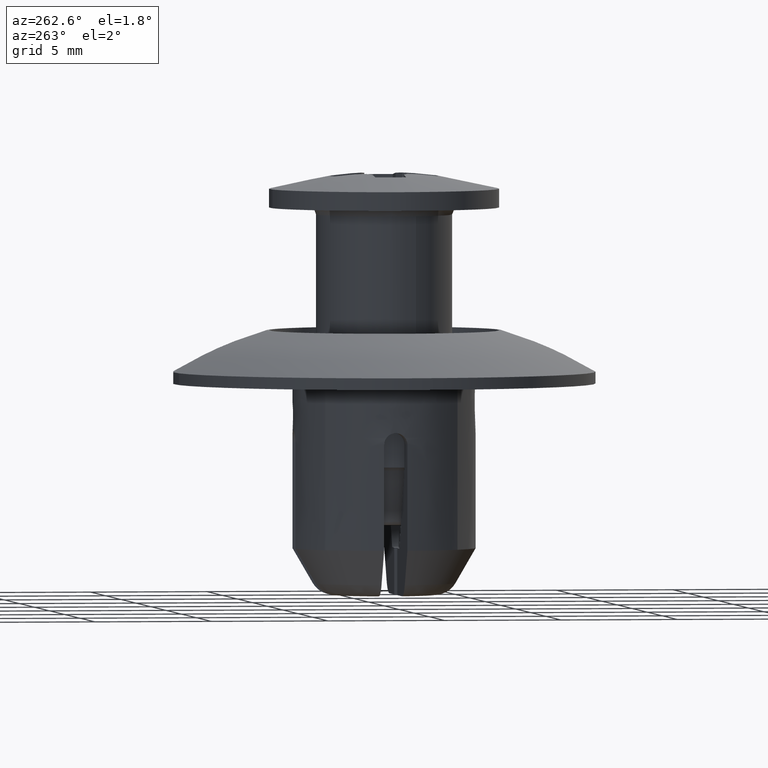
[diagram: clean part render]
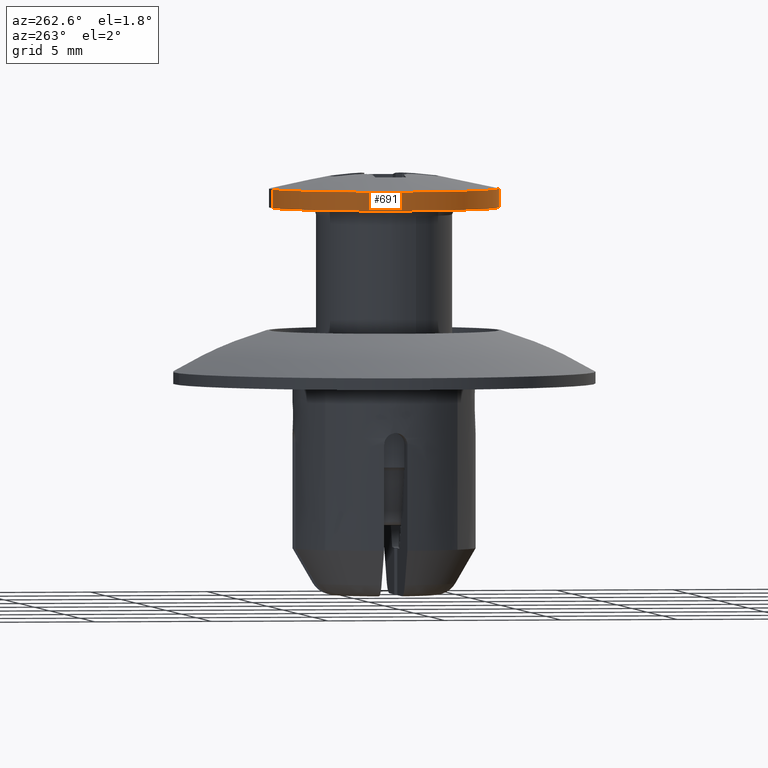
[diagram: same view with one face highlighted and labeled with its STEP entity id]
A machine part, auxiliary view. The second image highlights one B-rep face of the part: STEP entity #691.
In plain terms, the highlighted face is a freeform B-spline surface patch.
Its self-contained STEP definition (entity closure, byte-faithful):
#528=CARTESIAN_POINT('',(-0.578363031256165,4.865746855894880,-1.500001907348808));
#529=VERTEX_POINT('',#528);
#547=CARTESIAN_POINT('',(-0.578363088957883,4.865746849036269,-0.702089309692383));
#548=VERTEX_POINT('',#547);
#549=CARTESIAN_POINT('',(-0.578363088957883,4.865746849036269,-0.702089309692383));
#550=CARTESIAN_POINT('',(-0.578363031256165,4.865746855894880,-1.500001907348808));
#551=QUASI_UNIFORM_CURVE('',1,(#549,#550),.UNSPECIFIED.,.F.,.U.);
#552=EDGE_CURVE('',#548,#529,#551,.T.);
#571=CARTESIAN_POINT('',(0.299133294678434,-4.890860408311726,-0.702089309692383));
#572=VERTEX_POINT('',#571);
#586=CARTESIAN_POINT('',(0.299133238185643,-4.890860411766868,-1.500001907348521));
#587=VERTEX_POINT('',#586);
#588=CARTESIAN_POINT('',(0.299133294678434,-4.890860408311726,-0.702089309692383));
#589=CARTESIAN_POINT('',(0.299133238185643,-4.890860411766868,-1.500001907348521));
#590=QUASI_UNIFORM_CURVE('',1,(#588,#589),.UNSPECIFIED.,.F.,.U.);
#591=EDGE_CURVE('',#572,#587,#590,.T.);
#609=CARTESIAN_POINT('',(0.299137820432630,-4.890860131508944,-0.682141494750976));
#610=CARTESIAN_POINT('',(-4.591722311076315,-5.189997951941574,-0.682141494750976));
#611=CARTESIAN_POINT('',(-4.890860131508944,-0.299137820432630,-0.682141494750976));
#612=CARTESIAN_POINT('',(-5.173351961238920,4.319562768831405,-0.682141494750976));
#613=CARTESIAN_POINT('',(-0.578367704791630,4.865746300378899,-0.682141494750976));
#614=CARTESIAN_POINT('',(0.299137820432630,-4.890860131508944,-1.520448417663602));
#615=CARTESIAN_POINT('',(-4.591722311076315,-5.189997951941574,-1.520448417663602));
#616=CARTESIAN_POINT('',(-4.890860131508944,-0.299137820432630,-1.520448417663602));
#617=CARTESIAN_POINT('',(-5.173351961238920,4.319562768831405,-1.520448417663602));
#618=CARTESIAN_POINT('',(-0.578367704791630,4.865746300378899,-1.520448417663602));
#626=(BOUNDED_SURFACE()B_SPLINE_SURFACE(2,1,((#609,#614),(#610,#615),(#611,#616),(#612,#617),(#613,#618)),.UNSPECIFIED.,.F.,.F.,.U.)B_SPLINE_SURFACE_WITH_KNOTS((3,2,3),(2,2),(0.0,8.118585190472931,15.912426973326950),(0.0,1.0),.UNSPECIFIED.)GEOMETRIC_REPRESENTATION_ITEM()RATIONAL_B_SPLINE_SURFACE(((1.0,1.0),(0.707106781186548,0.707106781186548),(1.0,1.0),(0.718822509939086,0.718822509939086),(0.977505800795127,0.977505800795127)))REPRESENTATION_ITEM('')SURFACE());
#627=CARTESIAN_POINT('',(-4.899999618530280,0.0,-1.500001907348660));
#628=VERTEX_POINT('',#627);
#629=CARTESIAN_POINT('',(-4.899999618530280,0.0,-1.500001907348660));
#630=CARTESIAN_POINT('',(-4.899999618530280,4.352059047914446,-1.500001907348660));
#631=CARTESIAN_POINT('',(-0.578363031256165,4.865746855894880,-1.500001907348808));
#639=(BOUNDED_CURVE()B_SPLINE_CURVE(2,(#629,#630,#631),.UNSPECIFIED.,.F.,.U.)B_SPLINE_CURVE_WITH_KNOTS((3,3),(0.0,0.229562635842793),.UNSPECIFIED.)CURVE()GEOMETRIC_REPRESENTATION_ITEM()RATIONAL_B_SPLINE_CURVE((1.0,0.731050642674815,0.956027072355988))REPRESENTATION_ITEM(''));
#640=EDGE_CURVE('',#628,#529,#639,.T.);
#641=ORIENTED_EDGE('',*,*,#640,.F.);
#642=CARTESIAN_POINT('',(0.299133238185643,-4.890860411766868,-1.500001907348521));
#643=CARTESIAN_POINT('',(0.149706230960715,-4.899999618530279,-1.500001907348660));
#644=CARTESIAN_POINT('',(0.0,-4.899999618530280,-1.500001907348660));
#645=CARTESIAN_POINT('',(-4.899999618530281,-4.899999618530281,-1.500001907348661));
#646=CARTESIAN_POINT('',(-4.899999618530280,0.0,-1.500001907348660));
#654=(BOUNDED_CURVE()B_SPLINE_CURVE(2,(#642,#643,#644,#645,#646),.UNSPECIFIED.,.F.,.U.)B_SPLINE_CURVE_WITH_KNOTS((3,2,3),(0.739333123901080,0.750000000000000,1.0),.UNSPECIFIED.)CURVE()GEOMETRIC_REPRESENTATION_ITEM()RATIONAL_B_SPLINE_CURVE((0.976072388139696,0.987502977298812,1.0,0.707106781186547,1.0))REPRESENTATION_ITEM(''));
#655=EDGE_CURVE('',#587,#628,#654,.T.);
#656=ORIENTED_EDGE('',*,*,#655,.F.);
#657=ORIENTED_EDGE('',*,*,#591,.F.);
#658=CARTESIAN_POINT('',(-4.899999618530280,0.0,-0.702089309692383));
#659=VERTEX_POINT('',#658);
#660=CARTESIAN_POINT('',(0.299133294678434,-4.890860408311726,-0.702089309692383));
#661=CARTESIAN_POINT('',(0.149706259286306,-4.899999618530280,-0.702089309692383));
#662=CARTESIAN_POINT('',(0.0,-4.899999618530280,-0.702089309692383));
#663=CARTESIAN_POINT('',(-4.899999618530281,-4.899999618530281,-0.702089309692383));
#664=CARTESIAN_POINT('',(-4.899999618530280,0.0,-0.702089309692383));
#672=(BOUNDED_CURVE()B_SPLINE_CURVE(2,(#660,#661,#662,#663,#664),.UNSPECIFIED.,.F.,.U.)B_SPLINE_CURVE_WITH_KNOTS((3,2,3),(0.739333121908045,0.750000000000000,1.0),.UNSPECIFIED.)CURVE()GEOMETRIC_REPRESENTATION_ITEM()RATIONAL_B_SPLINE_CURVE((0.976072383868237,0.987502974963827,1.0,0.707106781186547,1.0))REPRESENTATION_ITEM(''));
#673=EDGE_CURVE('',#572,#659,#672,.T.);
#674=ORIENTED_EDGE('',*,*,#673,.T.);
#675=CARTESIAN_POINT('',(-4.899999618530280,0.0,-0.702089309692383));
#676=CARTESIAN_POINT('',(-4.899999618530280,4.352058995941122,-0.702089309692383));
#677=CARTESIAN_POINT('',(-0.578363088957883,4.865746849036269,-0.702089309692383));
#685=(BOUNDED_CURVE()B_SPLINE_CURVE(2,(#675,#676,#677),.UNSPECIFIED.,.F.,.U.)B_SPLINE_CURVE_WITH_KNOTS((3,3),(0.0,0.229562633838624),.UNSPECIFIED.)CURVE()GEOMETRIC_REPRESENTATION_ITEM()RATIONAL_B_SPLINE_CURVE((1.0,0.731050645022846,0.956027068427728))REPRESENTATION_ITEM(''));
#686=EDGE_CURVE('',#659,#548,#685,.T.);
#687=ORIENTED_EDGE('',*,*,#686,.T.);
#688=ORIENTED_EDGE('',*,*,#552,.T.);
#689=EDGE_LOOP('',(#641,#656,#657,#674,#687,#688));
#690=FACE_OUTER_BOUND('',#689,.T.);
#691=ADVANCED_FACE('',(#690),#626,.T.);